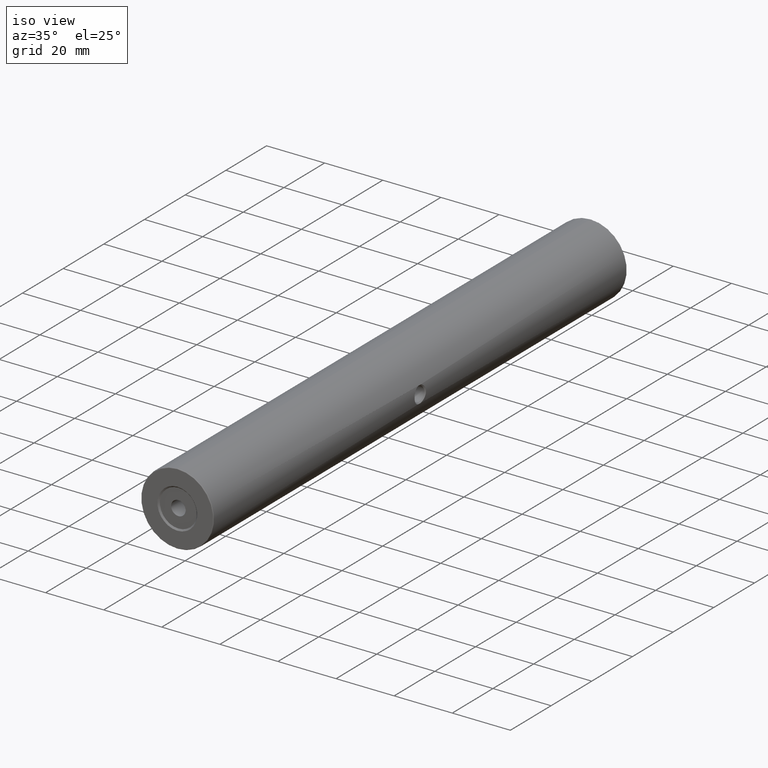
[diagram: clean part render]
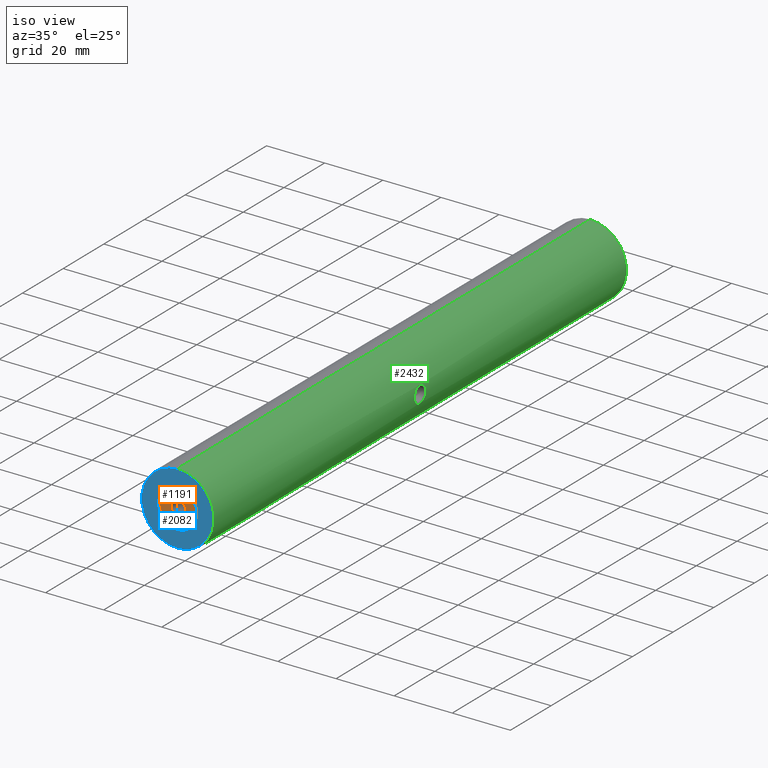
[diagram: same view with three faces highlighted in distinct colors, each labeled with its STEP entity id]
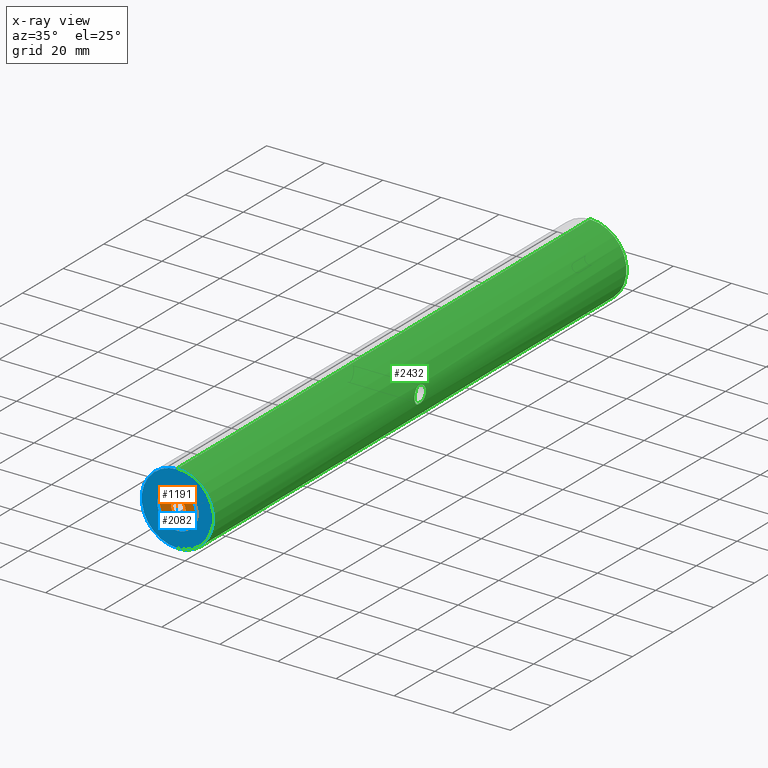
[diagram: x-ray of the same camera — body ghosted, the three highlighted faces saturated]
A machine part, iso view with three faces highlighted in distinct colors.
The next image is the same camera in x-ray (body ghosted, the three faces saturated) — at least one of them is partly hidden behind the body in this view.
Their STEP definitions:

[orange] entity #1191 — the highlighted planar face has unit normal (0, -1, 0).
#34 = DIRECTION ( 'NONE',  ( 0.0000000000000000000, 0.0000000000000000000, 1.000000000000000000 ) ) ;
#143 = VERTEX_POINT ( 'NONE', #179 ) ;
#179 = CARTESIAN_POINT ( 'NONE',  ( -22.50520183104453409, -99.70174781523061824, 56.35000000000000142 ) ) ;
#247 = FACE_OUTER_BOUND ( 'NONE', #1681, .T. ) ;
#259 = DIRECTION ( 'NONE',  ( 0.0000000000000000000, 0.0000000000000000000, -1.000000000000000000 ) ) ;
#263 = PLANE ( 'NONE',  #2536 ) ;
#322 = DIRECTION ( 'NONE',  ( -0.0000000000000000000, 1.000000000000000000, -0.0000000000000000000 ) ) ;
#478 = DIRECTION ( 'NONE',  ( 0.0000000000000000000, 0.0000000000000000000, 1.000000000000000000 ) ) ;
#486 = DIRECTION ( 'NONE',  ( 0.0000000000000000000, -1.000000000000000000, 0.0000000000000000000 ) ) ;
#526 = EDGE_CURVE ( 'NONE', #713, #3084, #605, .T. ) ;
#605 = CIRCLE ( 'NONE', #2538, 2.499999999999995115 ) ;
#618 = CARTESIAN_POINT ( 'NONE',  ( -22.50520183104453409, -99.70174781523061824, 47.50000000000000711 ) ) ;
#678 = EDGE_CURVE ( 'NONE', #143, #3067, #1801, .T. ) ;
#689 = ORIENTED_EDGE ( 'NONE', *, *, #1548, .F. ) ;
#699 = CARTESIAN_POINT ( 'NONE',  ( -22.50520183104453409, -99.70174781523061824, 50.00000000000000000 ) ) ;
#713 = VERTEX_POINT ( 'NONE', #2469 ) ;
#880 = CARTESIAN_POINT ( 'NONE',  ( -22.50520183104453409, -99.70174781523061824, 43.64999999999999858 ) ) ;
#1079 = DIRECTION ( 'NONE',  ( 0.0000000000000000000, 0.0000000000000000000, 1.000000000000000000 ) ) ;
#1099 = CARTESIAN_POINT ( 'NONE',  ( -22.50520183104453409, -99.70174781523061824, 50.00000000000000000 ) ) ;
#1154 = EDGE_LOOP ( 'NONE', ( #3039, #2218 ) ) ;
#1191 = ADVANCED_FACE ( 'NONE', ( #1570, #247 ), #263, .T. ) ;
#1338 = CARTESIAN_POINT ( 'NONE',  ( -22.50520183104453409, -99.70174781523061824, 50.00000000000000000 ) ) ;
#1461 = AXIS2_PLACEMENT_3D ( 'NONE', #699, #2819, #1762 ) ;
#1548 = EDGE_CURVE ( 'NONE', #3067, #143, #1571, .T. ) ;
#1570 = FACE_BOUND ( 'NONE', #1154, .T. ) ;
#1571 = CIRCLE ( 'NONE', #1847, 6.350000000000001421 ) ;
#1681 = EDGE_LOOP ( 'NONE', ( #689, #3296 ) ) ;
#1762 = DIRECTION ( 'NONE',  ( 0.0000000000000000000, 0.0000000000000000000, -1.000000000000000000 ) ) ;
#1801 = CIRCLE ( 'NONE', #2252, 6.350000000000001421 ) ;
#1819 = CARTESIAN_POINT ( 'NONE',  ( -22.50520183104453409, -99.70174781523061824, 50.00000000000000000 ) ) ;
#1847 = AXIS2_PLACEMENT_3D ( 'NONE', #1819, #2873, #478 ) ;
#1861 = CARTESIAN_POINT ( 'NONE',  ( -22.50520183104453409, -99.70174781523061824, 50.00000000000000000 ) ) ;
#1874 = DIRECTION ( 'NONE',  ( 0.0000000000000000000, -1.000000000000000000, 0.0000000000000000000 ) ) ;
#1911 = EDGE_CURVE ( 'NONE', #3084, #713, #2970, .T. ) ;
#2218 = ORIENTED_EDGE ( 'NONE', *, *, #526, .F. ) ;
#2252 = AXIS2_PLACEMENT_3D ( 'NONE', #1099, #322, #34 ) ;
#2469 = CARTESIAN_POINT ( 'NONE',  ( -22.50520183104453409, -99.70174781523061824, 52.50000000000000000 ) ) ;
#2536 = AXIS2_PLACEMENT_3D ( 'NONE', #1861, #486, #1079 ) ;
#2538 = AXIS2_PLACEMENT_3D ( 'NONE', #1338, #1874, #259 ) ;
#2819 = DIRECTION ( 'NONE',  ( 0.0000000000000000000, -1.000000000000000000, 0.0000000000000000000 ) ) ;
#2873 = DIRECTION ( 'NONE',  ( -0.0000000000000000000, 1.000000000000000000, -0.0000000000000000000 ) ) ;
#2970 = CIRCLE ( 'NONE', #1461, 2.499999999999995115 ) ;
#3039 = ORIENTED_EDGE ( 'NONE', *, *, #1911, .F. ) ;
#3067 = VERTEX_POINT ( 'NONE', #880 ) ;
#3084 = VERTEX_POINT ( 'NONE', #618 ) ;
#3296 = ORIENTED_EDGE ( 'NONE', *, *, #678, .F. ) ;

[blue] entity #2082 — the highlighted planar face has unit normal (0, 1, 0).
#176 = CARTESIAN_POINT ( 'NONE',  ( -22.50520183104453409, -100.2017478152306182, 50.00000000000000000 ) ) ;
#300 = DIRECTION ( 'NONE',  ( 0.0000000000000000000, 1.000000000000000000, 0.0000000000000000000 ) ) ;
#340 = CARTESIAN_POINT ( 'NONE',  ( -22.50520183104453409, -100.2017478152306182, 50.00000000000000000 ) ) ;
#381 = ORIENTED_EDGE ( 'NONE', *, *, #3150, .T. ) ;
#420 = DIRECTION ( 'NONE',  ( 0.0000000000000000000, 0.0000000000000000000, 1.000000000000000000 ) ) ;
#435 = DIRECTION ( 'NONE',  ( -0.0000000000000000000, -1.000000000000000000, -0.0000000000000000000 ) ) ;
#604 = CIRCLE ( 'NONE', #886, 6.849999999999939249 ) ;
#627 = EDGE_LOOP ( 'NONE', ( #381, #3059 ) ) ;
#686 = AXIS2_PLACEMENT_3D ( 'NONE', #340, #300, #2448 ) ;
#710 = DIRECTION ( 'NONE',  ( 0.0000000000000000000, 1.000000000000000000, 0.0000000000000000000 ) ) ;
#733 = CARTESIAN_POINT ( 'NONE',  ( -22.50520183104453409, -100.2017478152306182, 43.15000000000006253 ) ) ;
#886 = AXIS2_PLACEMENT_3D ( 'NONE', #176, #710, #2862 ) ;
#964 = CIRCLE ( 'NONE', #3088, 12.24999999999999645 ) ;
#966 = DIRECTION ( 'NONE',  ( -0.0000000000000000000, -1.000000000000000000, -0.0000000000000000000 ) ) ;
#1185 = AXIS2_PLACEMENT_3D ( 'NONE', #1878, #2747, #1691 ) ;
#1272 = ORIENTED_EDGE ( 'NONE', *, *, #2900, .T. ) ;
#1397 = FACE_BOUND ( 'NONE', #2241, .T. ) ;
#1403 = EDGE_CURVE ( 'NONE', #3330, #3357, #964, .T. ) ;
#1523 = DIRECTION ( 'NONE',  ( 0.0000000000000000000, 0.0000000000000000000, 1.000000000000000000 ) ) ;
#1565 = VERTEX_POINT ( 'NONE', #1663 ) ;
#1663 = CARTESIAN_POINT ( 'NONE',  ( -22.50520183104453409, -100.2017478152306182, 56.84999999999994458 ) ) ;
#1691 = DIRECTION ( 'NONE',  ( 0.0000000000000000000, 0.0000000000000000000, 1.000000000000000000 ) ) ;
#1756 = CARTESIAN_POINT ( 'NONE',  ( -22.50520183104453409, -100.2017478152306182, 50.00000000000000000 ) ) ;
#1878 = CARTESIAN_POINT ( 'NONE',  ( -22.50520183104453409, -100.2017478152306182, 50.00000000000000000 ) ) ;
#1939 = ORIENTED_EDGE ( 'NONE', *, *, #2057, .T. ) ;
#1974 = VERTEX_POINT ( 'NONE', #733 ) ;
#2057 = EDGE_CURVE ( 'NONE', #1974, #1565, #2692, .T. ) ;
#2082 = ADVANCED_FACE ( 'NONE', ( #2732, #1397 ), #3244, .F. ) ;
#2241 = EDGE_LOOP ( 'NONE', ( #1939, #1272 ) ) ;
#2448 = DIRECTION ( 'NONE',  ( 0.0000000000000000000, -0.0000000000000000000, 1.000000000000000000 ) ) ;
#2610 = CARTESIAN_POINT ( 'NONE',  ( -22.50520183104453409, -100.2017478152306182, 62.25000000000000000 ) ) ;
#2692 = CIRCLE ( 'NONE', #1185, 6.849999999999939249 ) ;
#2732 = FACE_OUTER_BOUND ( 'NONE', #627, .T. ) ;
#2747 = DIRECTION ( 'NONE',  ( 0.0000000000000000000, 1.000000000000000000, 0.0000000000000000000 ) ) ;
#2806 = CARTESIAN_POINT ( 'NONE',  ( -22.50520183104453409, -100.2017478152306182, 37.75000000000000711 ) ) ;
#2862 = DIRECTION ( 'NONE',  ( 0.0000000000000000000, 0.0000000000000000000, 1.000000000000000000 ) ) ;
#2900 = EDGE_CURVE ( 'NONE', #1565, #1974, #604, .T. ) ;
#3059 = ORIENTED_EDGE ( 'NONE', *, *, #1403, .T. ) ;
#3088 = AXIS2_PLACEMENT_3D ( 'NONE', #1756, #435, #420 ) ;
#3117 = CIRCLE ( 'NONE', #3443, 12.24999999999999645 ) ;
#3150 = EDGE_CURVE ( 'NONE', #3357, #3330, #3117, .T. ) ;
#3244 = PLANE ( 'NONE',  #686 ) ;
#3330 = VERTEX_POINT ( 'NONE', #2806 ) ;
#3357 = VERTEX_POINT ( 'NONE', #2610 ) ;
#3405 = CARTESIAN_POINT ( 'NONE',  ( -22.50520183104453409, -100.2017478152306182, 50.00000000000000000 ) ) ;
#3443 = AXIS2_PLACEMENT_3D ( 'NONE', #3405, #966, #1523 ) ;

[green] entity #2432 — the highlighted cylindrical surface (partial cylindrical patch) has radius 12.5 mm, axis along (-0, -1, -0).
#77 = CARTESIAN_POINT ( 'NONE',  ( -10.34847154019206705, 1.401086072872692601, 52.90927974513797949 ) ) ;
#104 = VERTEX_POINT ( 'NONE', #765 ) ;
#163 = AXIS2_PLACEMENT_3D ( 'NONE', #2899, #2605, #1039 ) ;
#174 = EDGE_CURVE ( 'NONE', #104, #2638, #1386, .T. ) ;
#282 = CARTESIAN_POINT ( 'NONE',  ( -10.26514075146267935, -0.02094479338460816797, 52.54036784948636551 ) ) ;
#283 = CARTESIAN_POINT ( 'NONE',  ( -10.03912386684486968, 4.066135811496502939, 50.93725250157489626 ) ) ;
#317 = DIRECTION ( 'NONE',  ( -0.0000000000000000000, -1.000000000000000000, -0.0000000000000000000 ) ) ;
#342 = CARTESIAN_POINT ( 'NONE',  ( -10.34839696664177211, 1.768149378122849225, 52.90896813174318680 ) ) ;
#401 = CARTESIAN_POINT ( 'NONE',  ( -22.50520183104453409, 102.7482521847693846, 62.50000000000000000 ) ) ;
#484 = EDGE_LOOP ( 'NONE', ( #1969, #2029, #2790, #2757 ) ) ;
#503 = CARTESIAN_POINT ( 'NONE',  ( -10.02677590329418500, 4.118849129201255010, 49.24228715533256917 ) ) ;
#519 = CARTESIAN_POINT ( 'NONE',  ( -10.15309026959585204, -0.7201977725135496611, 48.07808007598477928 ) ) ;
#536 = CARTESIAN_POINT ( 'NONE',  ( -10.08992494500197701, -1.039449521787476849, 51.46152594163837080 ) ) ;
#537 = CARTESIAN_POINT ( 'NONE',  ( -10.32931247817811027, 2.139314989562690172, 52.83196653070411486 ) ) ;
#555 = CARTESIAN_POINT ( 'NONE',  ( -10.13120772191445340, 3.643678481237830891, 48.20895563083943358 ) ) ;
#576 = CARTESIAN_POINT ( 'NONE',  ( -10.19795443141096847, 3.257006472572691713, 52.19097686571278416 ) ) ;
#610 = CARTESIAN_POINT ( 'NONE',  ( -10.22016270266418658, 3.116156845041657686, 52.31070717733680198 ) ) ;
#632 = CIRCLE ( 'NONE', #2592, 12.49999999999999645 ) ;
#692 = DIRECTION ( 'NONE',  ( 0.0000000000000000000, 0.0000000000000000000, -1.000000000000000000 ) ) ;
#720 = EDGE_CURVE ( 'NONE', #2297, #104, #1898, .T. ) ;
#749 = CARTESIAN_POINT ( 'NONE',  ( -10.34847154019206705, 1.401086072872692601, 52.90927974513797949 ) ) ;
#765 = CARTESIAN_POINT ( 'NONE',  ( -22.50520183104453409, -99.95174781523061824, 62.50000000000000000 ) ) ;
#767 = CARTESIAN_POINT ( 'NONE',  ( -10.01064152821728293, 4.186927187749938106, 50.38093568510177533 ) ) ;
#785 = CARTESIAN_POINT ( 'NONE',  ( -10.19775323581731463, -0.4616773628604946555, 47.81021797965179587 ) ) ;
#800 = CARTESIAN_POINT ( 'NONE',  ( -10.01064372293302007, -1.390416779116980361, 50.38099164021084420 ) ) ;
#834 = LINE ( 'NONE', #1075, #1605 ) ;
#855 = AXIS2_PLACEMENT_3D ( 'NONE', #2015, #3034, #692 ) ;
#954 = FACE_BOUND ( 'NONE', #3031, .T. ) ;
#977 = EDGE_CURVE ( 'NONE', #1180, #2297, #632, .T. ) ;
#1007 = CARTESIAN_POINT ( 'NONE',  ( -10.22069015971748129, 3.112715133785424637, 47.68647738587849005 ) ) ;
#1025 = CARTESIAN_POINT ( 'NONE',  ( -10.03928546548424094, -1.268904155881374063, 49.06091485609827885 ) ) ;
#1039 = DIRECTION ( 'NONE',  ( 0.0000000000000000000, 0.0000000000000000000, 1.000000000000000000 ) ) ;
#1042 = CARTESIAN_POINT ( 'NONE',  ( -10.34845463298328205, 1.026200419320157708, 47.09079090336737039 ) ) ;
#1075 = CARTESIAN_POINT ( 'NONE',  ( -22.50520183104453409, 102.9982521847693846, 37.50000000000000711 ) ) ;
#1077 = CARTESIAN_POINT ( 'NONE',  ( -10.32641410112916880, 0.6672506221653553560, 52.81577975407616776 ) ) ;
#1080 = DIRECTION ( 'NONE',  ( -0.0000000000000000000, -1.000000000000000000, -0.0000000000000000000 ) ) ;
#1082 = EDGE_CURVE ( 'NONE', #3051, #2546, #3332, .T. ) ;
#1120 = DIRECTION ( 'NONE',  ( -0.0000000000000000000, -1.000000000000000000, -0.0000000000000000000 ) ) ;
#1138 = CARTESIAN_POINT ( 'NONE',  ( -22.50520183104453409, 102.7482521847693846, 50.00000000000000000 ) ) ;
#1180 = VERTEX_POINT ( 'NONE', #3161 ) ;
#1274 = CARTESIAN_POINT ( 'NONE',  ( -10.00518440457559777, 4.209659017141454740, 50.09320650238487360 ) ) ;
#1322 = CARTESIAN_POINT ( 'NONE',  ( -10.00519734990737497, -1.413097615887292768, 49.80982674692141643 ) ) ;
#1323 = CARTESIAN_POINT ( 'NONE',  ( -10.34848894705065803, 1.765824933951802844, 47.09064751851791186 ) ) ;
#1386 = CIRCLE ( 'NONE', #163, 12.49999999999999645 ) ;
#1396 = B_SPLINE_CURVE_WITH_KNOTS ( 'NONE', 3,
 ( #1792, #1042, #2104, #3177, #2070, #1550, #785, #519, #1585, #2120, #1533, #1025, #2392, #2658, #1322, #3192, #2623, #800, #2865, #2607, #2881, #1860, #536, #2674, #2089, #3400, #282, #2410, #1077, #3140, #1811, #749 ),
 .UNSPECIFIED., .F., .F.,
 ( 4, 2, 2, 2, 2, 2, 2, 2, 2, 2, 2, 2, 2, 2, 2, 4 ),
 ( 0.0000000000000000000, 0.06250000000000129063, 0.09375000000000194289, 0.1250000000000025813, 0.1562500000000032196, 0.1875000000000038858, 0.2187500000000045242, 0.2500000000000051625, 0.2656250000000049405, 0.2812500000000047184, 0.3125000000000041633, 0.3437500000000036637, 0.3750000000000031086, 0.4375000000000013878, 0.4687500000000006661, 0.5000000000000000000 ),
 .UNSPECIFIED. ) ;
#1427 = FACE_OUTER_BOUND ( 'NONE', #484, .T. ) ;
#1533 = CARTESIAN_POINT ( 'NONE',  ( -10.07065230751083718, -1.128473363282011199, 48.71045361175770694 ) ) ;
#1550 = CARTESIAN_POINT ( 'NONE',  ( -10.22044804822625608, -0.3177678142618676205, 47.68777784861511293 ) ) ;
#1568 = CARTESIAN_POINT ( 'NONE',  ( -10.28138215996619920, 2.645685024799125262, 47.38584113131452114 ) ) ;
#1585 = CARTESIAN_POINT ( 'NONE',  ( -10.13104527352238549, -0.8357329463647192869, 48.22352196541854852 ) ) ;
#1586 = CARTESIAN_POINT ( 'NONE',  ( -10.34847189391649103, 1.398252184769385842, 47.09071877678784546 ) ) ;
#1605 = VECTOR ( 'NONE', #317, 1000.000000000000000 ) ;
#1640 = VECTOR ( 'NONE', #1120, 1000.000000000000000 ) ;
#1643 = CARTESIAN_POINT ( 'NONE',  ( -10.15294739807879054, 3.517539804955801319, 51.92107485672839573 ) ) ;
#1661 = CARTESIAN_POINT ( 'NONE',  ( -22.50520183104453409, 102.9982521847693846, 62.50000000000000000 ) ) ;
#1792 = CARTESIAN_POINT ( 'NONE',  ( -10.34847189391649103, 1.398252184769385842, 47.09071877678784546 ) ) ;
#1811 = CARTESIAN_POINT ( 'NONE',  ( -10.34850882696721541, 1.217554420247610292, 52.90943555183537939 ) ) ;
#1829 = CARTESIAN_POINT ( 'NONE',  ( -10.00627509750832367, 4.205142563660526633, 50.18968306952480418 ) ) ;
#1860 = CARTESIAN_POINT ( 'NONE',  ( -10.07084455742823792, -1.127609090102686062, 51.29153715517060164 ) ) ;
#1898 = LINE ( 'NONE', #1661, #1640 ) ;
#1969 = ORIENTED_EDGE ( 'NONE', *, *, #977, .T. ) ;
#1978 = ORIENTED_EDGE ( 'NONE', *, *, #1082, .T. ) ;
#2015 = CARTESIAN_POINT ( 'NONE',  ( -22.50520183104453409, 102.9982521847693846, 50.00000000000000000 ) ) ;
#2019 = EDGE_CURVE ( 'NONE', #2546, #3051, #1396, .T. ) ;
#2029 = ORIENTED_EDGE ( 'NONE', *, *, #720, .T. ) ;
#2070 = CARTESIAN_POINT ( 'NONE',  ( -10.26201457399351646, -0.01335821455692823463, 47.47692398635977185 ) ) ;
#2071 = CARTESIAN_POINT ( 'NONE',  ( -10.00523732347763506, 4.209438793494691744, 49.80666152472036856 ) ) ;
#2089 = CARTESIAN_POINT ( 'NONE',  ( -10.15310274898452292, -0.7201770143199732743, 51.92207674292402686 ) ) ;
#2104 = CARTESIAN_POINT ( 'NONE',  ( -10.32954370538267241, 0.6599845765318430590, 47.16701032399804205 ) ) ;
#2106 = CARTESIAN_POINT ( 'NONE',  ( -10.08673579309597201, 3.852910402659657230, 48.53189826306934407 ) ) ;
#2120 = CARTESIAN_POINT ( 'NONE',  ( -10.08961095990384216, -1.040983855268346803, 48.54098388018958588 ) ) ;
#2121 = CARTESIAN_POINT ( 'NONE',  ( -10.26240494946077142, 2.806784448226841810, 47.47501714752257129 ) ) ;
#2197 = CARTESIAN_POINT ( 'NONE',  ( -10.07078360413766127, 3.924386101507614910, 51.29104044072172286 ) ) ;
#2226 = CYLINDRICAL_SURFACE ( 'NONE', #855, 12.49999999999999645 ) ;
#2297 = VERTEX_POINT ( 'NONE', #401 ) ;
#2339 = CARTESIAN_POINT ( 'NONE',  ( -10.19821154777518402, 3.255369150930072397, 47.80765360771029293 ) ) ;
#2372 = CARTESIAN_POINT ( 'NONE',  ( -22.50520183104453409, -99.95174781523061824, 37.50000000000000711 ) ) ;
#2392 = CARTESIAN_POINT ( 'NONE',  ( -10.02677036316765502, -1.322359924719953339, 49.24218911787531994 ) ) ;
#2410 = CARTESIAN_POINT ( 'NONE',  ( -10.31357678706532432, 0.4914312575701690333, 52.76042022121063724 ) ) ;
#2411 = CARTESIAN_POINT ( 'NONE',  ( -10.01384831664376485, 4.173523746012481439, 50.47415274408399455 ) ) ;
#2432 = ADVANCED_FACE ( 'NONE', ( #954, #1427 ), #2226, .T. ) ;
#2450 = CARTESIAN_POINT ( 'NONE',  ( -10.08950009456847496, 3.837971256596490299, 51.45792308326927156 ) ) ;
#2546 = VERTEX_POINT ( 'NONE', #2634 ) ;
#2564 = ORIENTED_EDGE ( 'NONE', *, *, #2019, .T. ) ;
#2592 = AXIS2_PLACEMENT_3D ( 'NONE', #1138, #1080, #2937 ) ;
#2605 = DIRECTION ( 'NONE',  ( 0.0000000000000000000, 1.000000000000000000, 0.0000000000000000000 ) ) ;
#2607 = CARTESIAN_POINT ( 'NONE',  ( -10.02675186171662602, -1.322443306135905550, 50.75721055769185597 ) ) ;
#2623 = CARTESIAN_POINT ( 'NONE',  ( -10.00627837453444258, -1.408621410732909585, 50.18986673007012911 ) ) ;
#2634 = CARTESIAN_POINT ( 'NONE',  ( -10.34847189391649103, 1.398252184769385842, 47.09071877678784546 ) ) ;
#2638 = VERTEX_POINT ( 'NONE', #2372 ) ;
#2658 = CARTESIAN_POINT ( 'NONE',  ( -10.00959453156566070, -1.395018423955128650, 49.61878162586667429 ) ) ;
#2674 = CARTESIAN_POINT ( 'NONE',  ( -10.13100719875638056, -0.8359003745979874944, 51.77608148389524700 ) ) ;
#2675 = CARTESIAN_POINT ( 'NONE',  ( -10.28116133936227783, 2.647623010313881142, 52.61312323643205957 ) ) ;
#2687 = EDGE_CURVE ( 'NONE', #1180, #2638, #834, .T. ) ;
#2757 = ORIENTED_EDGE ( 'NONE', *, *, #2687, .F. ) ;
#2790 = ORIENTED_EDGE ( 'NONE', *, *, #174, .T. ) ;
#2865 = CARTESIAN_POINT ( 'NONE',  ( -10.01393814977552132, -1.376641194406618363, 50.47655221270563430 ) ) ;
#2881 = CARTESIAN_POINT ( 'NONE',  ( -10.03926934905746293, -1.268979855236153975, 50.93906143870371039 ) ) ;
#2899 = CARTESIAN_POINT ( 'NONE',  ( -22.50520183104453409, -99.95174781523061824, 50.00000000000000000 ) ) ;
#2902 = CARTESIAN_POINT ( 'NONE',  ( -10.00964959997098269, 4.191281611593781875, 49.61735547849362860 ) ) ;
#2920 = CARTESIAN_POINT ( 'NONE',  ( -10.03956905279386014, 4.064168843762191230, 49.05718252072971808 ) ) ;
#2936 = CARTESIAN_POINT ( 'NONE',  ( -10.32961809028127931, 2.135293394376745368, 47.16670927387677636 ) ) ;
#2937 = DIRECTION ( 'NONE',  ( 0.0000000000000000000, 0.0000000000000000000, 1.000000000000000000 ) ) ;
#2974 = CARTESIAN_POINT ( 'NONE',  ( -10.26171685815562995, 2.812244921916700946, 52.52163236096689758 ) ) ;
#2991 = CARTESIAN_POINT ( 'NONE',  ( -10.13051884922379031, 3.634910052844913864, 51.77268452503545859 ) ) ;
#3031 = EDGE_LOOP ( 'NONE', ( #2564, #1978 ) ) ;
#3034 = DIRECTION ( 'NONE',  ( -0.0000000000000000000, -1.000000000000000000, -0.0000000000000000000 ) ) ;
#3051 = VERTEX_POINT ( 'NONE', #77 ) ;
#3140 = CARTESIAN_POINT ( 'NONE',  ( -10.34401387725284671, 1.031674240312169033, 52.89084654493355231 ) ) ;
#3161 = CARTESIAN_POINT ( 'NONE',  ( -22.50520183104453409, 102.7482521847693846, 37.50000000000000711 ) ) ;
#3177 = CARTESIAN_POINT ( 'NONE',  ( -10.28120580035105291, 0.1491743863579382545, 47.38666087812499228 ) ) ;
#3192 = CARTESIAN_POINT ( 'NONE',  ( -10.00520407681040780, -1.413074357631360023, 50.09552809953446229 ) ) ;
#3211 = CARTESIAN_POINT ( 'NONE',  ( -10.34847154019206705, 1.401086072872692601, 52.90927974513797949 ) ) ;
#3332 = B_SPLINE_CURVE_WITH_KNOTS ( 'NONE', 3,
 ( #3211, #342, #537, #2675, #2974, #610, #576, #1643, #2991, #2450, #2197, #283, #3420, #2411, #767, #1829, #1274, #2071, #2902, #503, #2920, #2106, #555, #2339, #1007, #2121, #1568, #2936, #1323, #1586 ),
 .UNSPECIFIED., .F., .F.,
 ( 4, 2, 2, 2, 2, 2, 2, 2, 2, 2, 2, 2, 2, 2, 4 ),
 ( 0.5000000000000000000, 0.5625000000000008882, 0.5937500000000015543, 0.6250000000000022204, 0.6562500000000028866, 0.6875000000000035527, 0.7187500000000041078, 0.7343750000000044409, 0.7500000000000046629, 0.7812500000000039968, 0.8125000000000035527, 0.8750000000000023315, 0.9062500000000017764, 0.9375000000000013323, 1.000000000000000000 ),
 .UNSPECIFIED. ) ;
#3400 = CARTESIAN_POINT ( 'NONE',  ( -10.22067027173311260, -0.3289239817675875810, 52.32705980222906561 ) ) ;
#3420 = CARTESIAN_POINT ( 'NONE',  ( -10.02657681141778312, 4.119691500564650610, 50.75422238455532664 ) ) ;